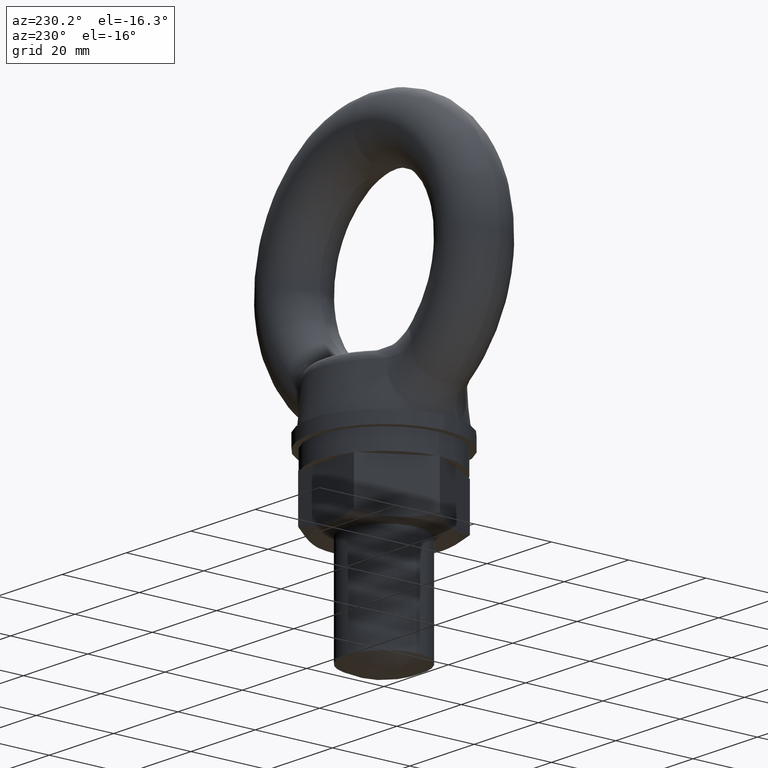
[diagram: clean part render]
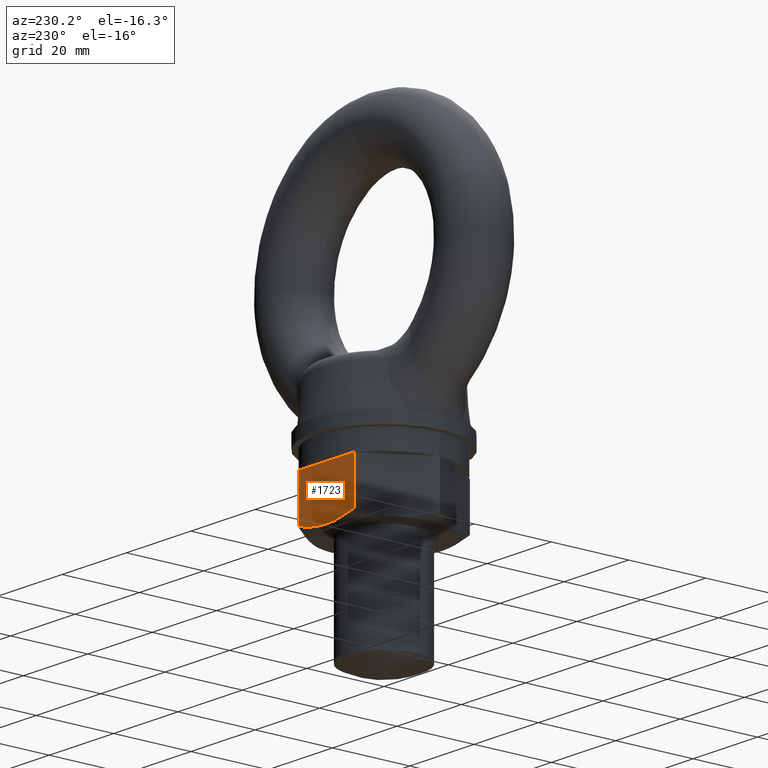
[diagram: same view with one face highlighted and labeled with its STEP entity id]
A machine part, auxiliary view. The second image highlights one B-rep face of the part: STEP entity #1723.
In plain terms, the highlighted planar face has unit normal (0, -1, 0).
Its self-contained STEP definition (entity closure, byte-faithful):
#1495 = ORIENTED_EDGE ( 'NONE', *, *, #1661, .F. ) ;
#1508 = ORIENTED_EDGE ( 'NONE', *, *, #1509, .F. ) ;
#1509 = EDGE_CURVE ( 'NONE', #3384, #3397, #2104, .T. ) ;
#1510 = ORIENTED_EDGE ( 'NONE', *, *, #1522, .F. ) ;
#1513 = EDGE_LOOP ( 'NONE', ( #1510, #1524, #1508, #1526, #1495 ) ) ;
#1520 = VERTEX_POINT ( 'NONE', #2131 ) ;
#1522 = EDGE_CURVE ( 'NONE', #1520, #1523, #2130, .T. ) ;
#1523 = VERTEX_POINT ( 'NONE', #2129 ) ;
#1524 = ORIENTED_EDGE ( 'NONE', *, *, #1556, .F. ) ;
#1526 = ORIENTED_EDGE ( 'NONE', *, *, #1555, .T. ) ;
#1555 = EDGE_CURVE ( 'NONE', #3384, #3399, #2085, .T. ) ;
#1556 = EDGE_CURVE ( 'NONE', #3397, #1520, #2081, .T. ) ;
#1661 = EDGE_CURVE ( 'NONE', #1523, #3399, #2375, .T. ) ;
#1723 = ADVANCED_FACE ( 'NONE', ( #2744 ), #2742, .F. ) ;
#2078 = DIRECTION ( 'NONE',  ( 0.0000000000000000000, 0.0000000000000000000, -1.000000000000000000 ) ) ;
#2079 = VECTOR ( 'NONE', #2078, 1000.000000000000000 ) ;
#2080 = CARTESIAN_POINT ( 'NONE',  ( -8.660253999999998300, 15.00000000000000000, 943.6999969999999400 ) ) ;
#2081 = LINE ( 'NONE', #2080, #2079 ) ;
#2082 = DIRECTION ( 'NONE',  ( 0.0000000000000000000, 0.0000000000000000000, -1.000000000000000000 ) ) ;
#2083 = VECTOR ( 'NONE', #2082, 1000.000000000000000 ) ;
#2084 = CARTESIAN_POINT ( 'NONE',  ( 8.660253999999998300, 15.00000000000000000, 943.6999969999999400 ) ) ;
#2085 = LINE ( 'NONE', #2084, #2083 ) ;
#2101 = DIRECTION ( 'NONE',  ( -1.000000000000000000, 0.0000000000000000000, 0.0000000000000000000 ) ) ;
#2102 = VECTOR ( 'NONE', #2101, 1000.000000000000000 ) ;
#2103 = CARTESIAN_POINT ( 'NONE',  ( 8.660253999999998300, 15.00000000000000000, -43.29999900000014900 ) ) ;
#2104 = LINE ( 'NONE', #2103, #2102 ) ;
#2122 = CARTESIAN_POINT ( 'NONE',  ( 0.0000000000000000000, 15.00000000000000000, -56.30000300000009600 ) ) ;
#2123 = CARTESIAN_POINT ( 'NONE',  ( -1.464404437983632300, 15.00000000000000200, -56.30000300000009600 ) ) ;
#2124 = CARTESIAN_POINT ( 'NONE',  ( -2.918366813997372900, 15.00000000000000000, -56.17406471936620700 ) ) ;
#2125 = CARTESIAN_POINT ( 'NONE',  ( -5.808530979648735700, 15.00000000000000400, -55.70798355773237600 ) ) ;
#2126 = CARTESIAN_POINT ( 'NONE',  ( -7.250773704282162100, 15.00000000000000000, -55.36713896151078300 ) ) ;
#2127 = CARTESIAN_POINT ( 'NONE',  ( -8.660253999999998300, 15.00000000000000000, -54.96025704876919300 ) ) ;
#2129 = CARTESIAN_POINT ( 'NONE',  ( 0.0000000000000000000, 15.00000000000000000, -56.30000300000009600 ) ) ;
#2130 = B_SPLINE_CURVE_WITH_KNOTS ( 'NONE', 3,
 ( #2127, #2126, #2125, #2124, #2123, #2122 ),
 .UNSPECIFIED., .F., .F.,
 ( 4, 2, 4 ),
 ( 0.01578135519199479200, 0.02016352792958536800, 0.02454570066717594000 ),
 .UNSPECIFIED. ) ;
#2131 = CARTESIAN_POINT ( 'NONE',  ( -8.660253999999998300, 15.00000000000000000, -54.96025704876919300 ) ) ;
#2366 = CARTESIAN_POINT ( 'NONE',  ( 8.660253999999998300, 15.00000000000000000, -54.96025704876919300 ) ) ;
#2367 = CARTESIAN_POINT ( 'NONE',  ( 7.259722152322110500, 15.00000000000000200, -55.36455576707688700 ) ) ;
#2368 = CARTESIAN_POINT ( 'NONE',  ( 5.841206664520824700, 15.00000000000000000, -55.70111161903209100 ) ) ;
#2369 = CARTESIAN_POINT ( 'NONE',  ( 3.672874707161987400, 15.00000000000000000, -56.05316407389835800 ) ) ;
#2370 = CARTESIAN_POINT ( 'NONE',  ( 2.943301964262826900, 14.99999999999999800, -56.14491709987432000 ) ) ;
#2371 = CARTESIAN_POINT ( 'NONE',  ( 1.468331681756600600, 15.00000000000000400, -56.26881246783327800 ) ) ;
#2372 = CARTESIAN_POINT ( 'NONE',  ( 0.7327011086299587400, 15.00000000000000000, -56.30000300000008900 ) ) ;
#2373 = CARTESIAN_POINT ( 'NONE',  ( 0.0000000000000000000, 15.00000000000000000, -56.30000300000009600 ) ) ;
#2375 = B_SPLINE_CURVE_WITH_KNOTS ( 'NONE', 3,
 ( #2373, #2372, #2371, #2370, #2369, #2368, #2367, #2366 ),
 .UNSPECIFIED., .F., .F.,
 ( 4, 2, 2, 4 ),
 ( 0.02454570066717594000, 0.02673827994360973900, 0.02893085922004353500, 0.03331601777291113400 ),
 .UNSPECIFIED. ) ;
#2738 = DIRECTION ( 'NONE',  ( 0.0000000000000000000, 0.0000000000000000000, -1.000000000000000000 ) ) ;
#2739 = DIRECTION ( 'NONE',  ( 0.0000000000000000000, -1.000000000000000000, 0.0000000000000000000 ) ) ;
#2740 = CARTESIAN_POINT ( 'NONE',  ( 8.660253999999998300, 15.00000000000000000, 943.6999969999999400 ) ) ;
#2741 = AXIS2_PLACEMENT_3D ( 'NONE', #2740, #2739, #2738 ) ;
#2742 = PLANE ( 'NONE',  #2741 ) ;
#2744 = FACE_OUTER_BOUND ( 'NONE', #1513, .T. ) ;
#3384 = VERTEX_POINT ( 'NONE', #10740 ) ;
#3397 = VERTEX_POINT ( 'NONE', #10751 ) ;
#3399 = VERTEX_POINT ( 'NONE', #10749 ) ;
#10740 = CARTESIAN_POINT ( 'NONE',  ( 8.660253999999998300, 15.00000000000000000, -43.29999900000014900 ) ) ;
#10749 = CARTESIAN_POINT ( 'NONE',  ( 8.660253999999998300, 15.00000000000000000, -54.96025704876919300 ) ) ;
#10751 = CARTESIAN_POINT ( 'NONE',  ( -8.660253999999998300, 15.00000000000000000, -43.29999900000014900 ) ) ;